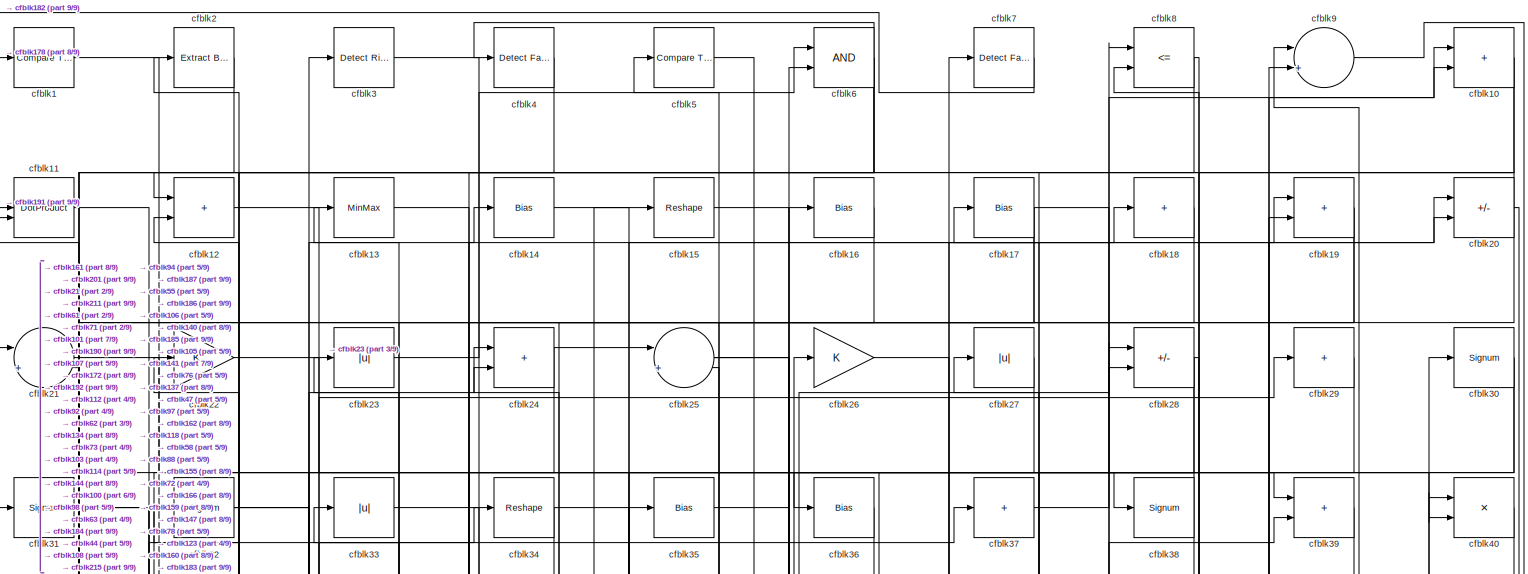
[diagram: root canvas - part 1/9, full width, top band]
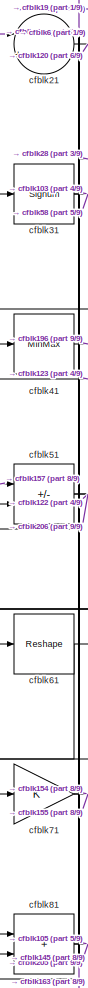
[diagram: root canvas - part 2/9, top left region]
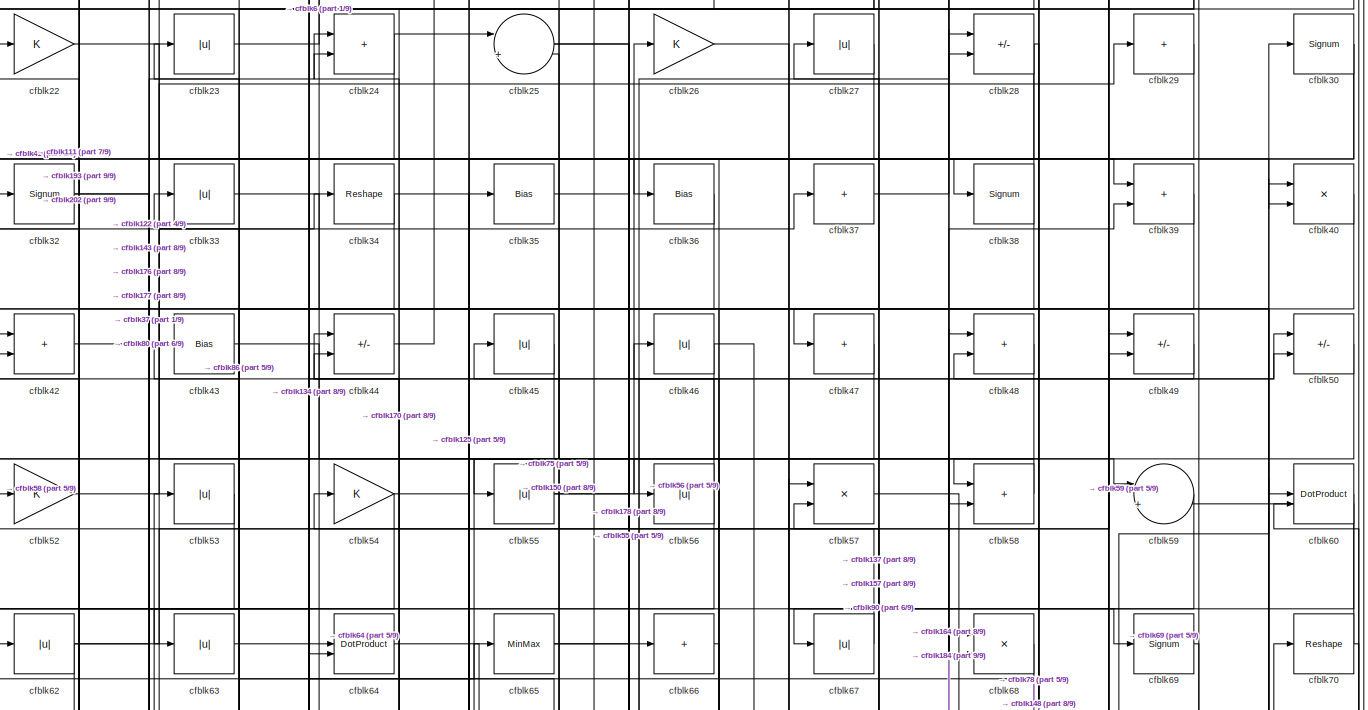
[diagram: root canvas - part 3/9, full width, top band]
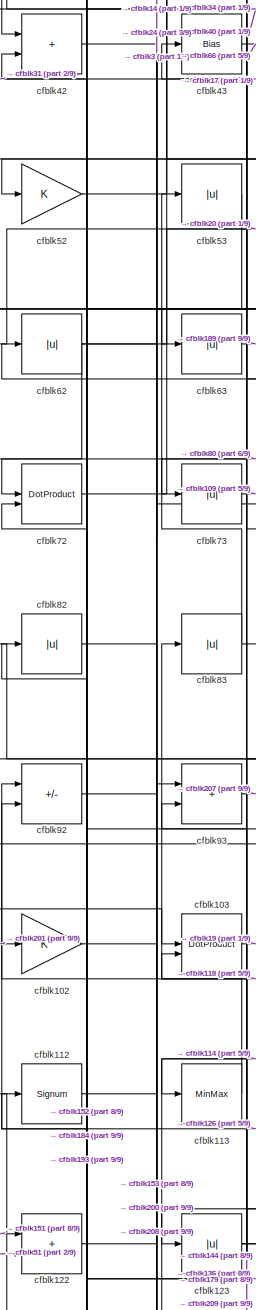
[diagram: root canvas - part 4/9, middle left region]
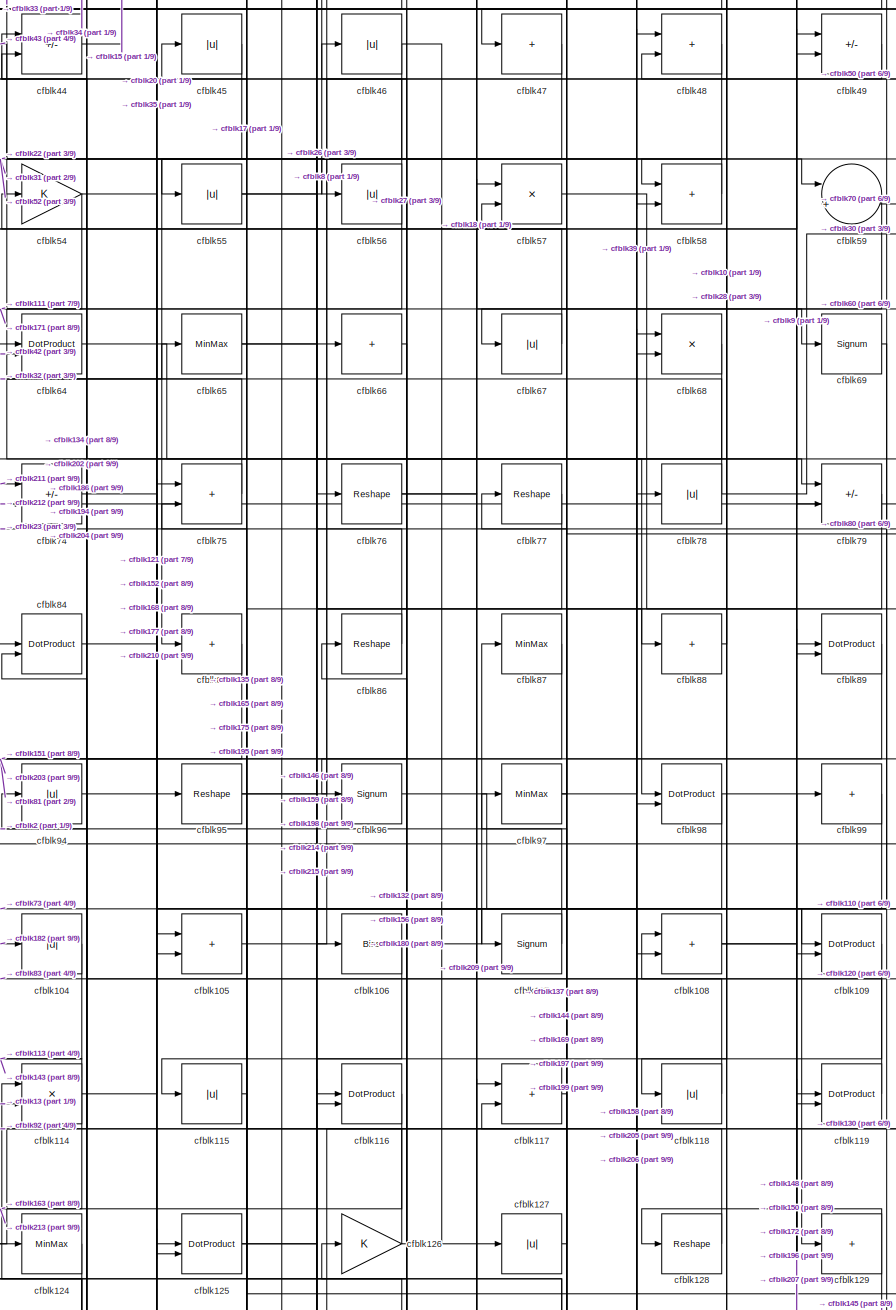
[diagram: root canvas - part 5/9, central region]
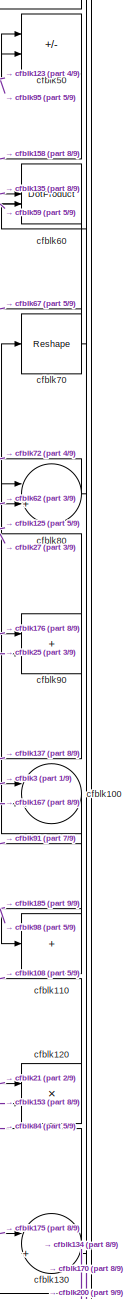
[diagram: root canvas - part 6/9, middle right region]
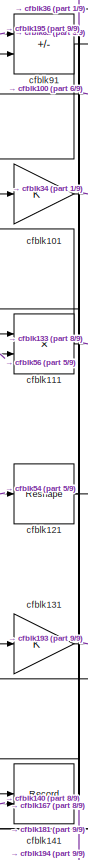
[diagram: root canvas - part 7/9, middle left region]
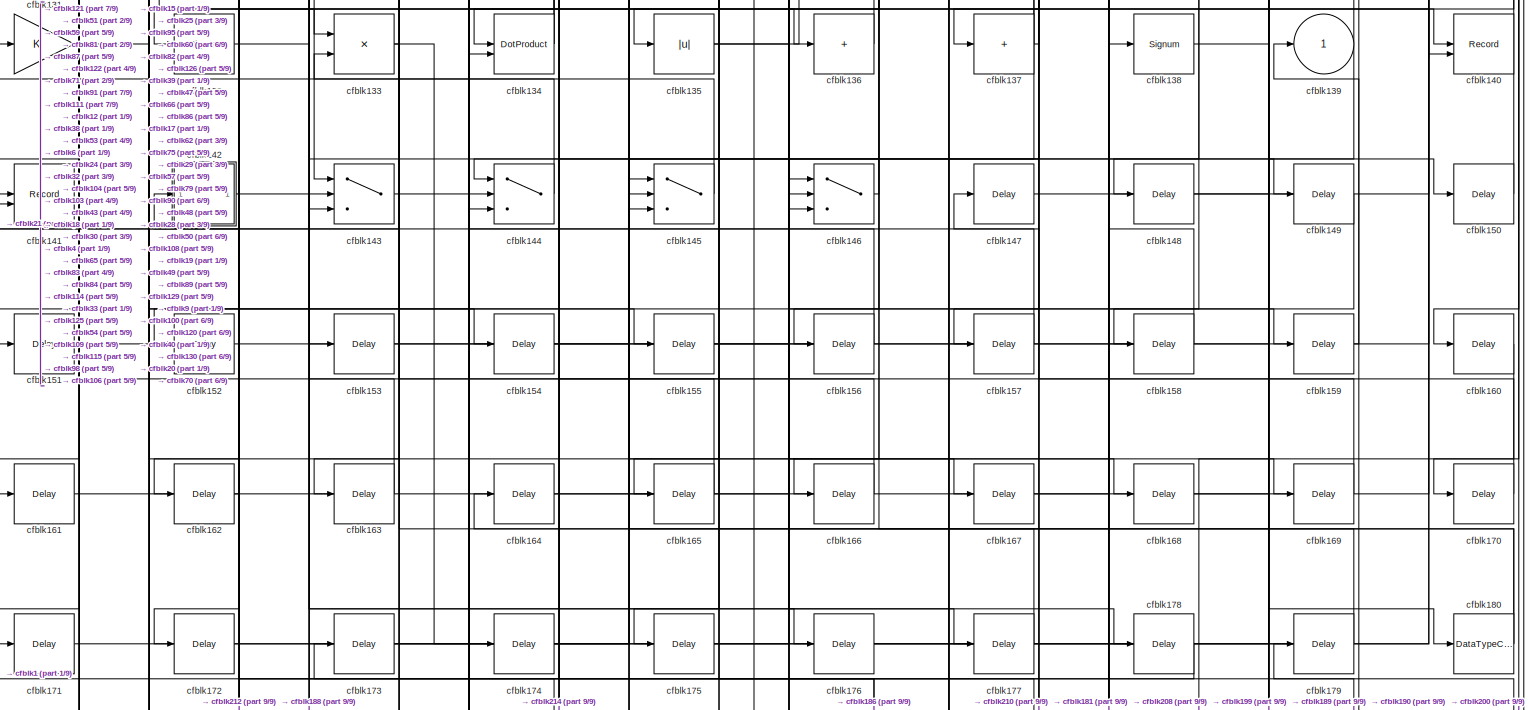
[diagram: root canvas - part 8/9, full width, bottom band]
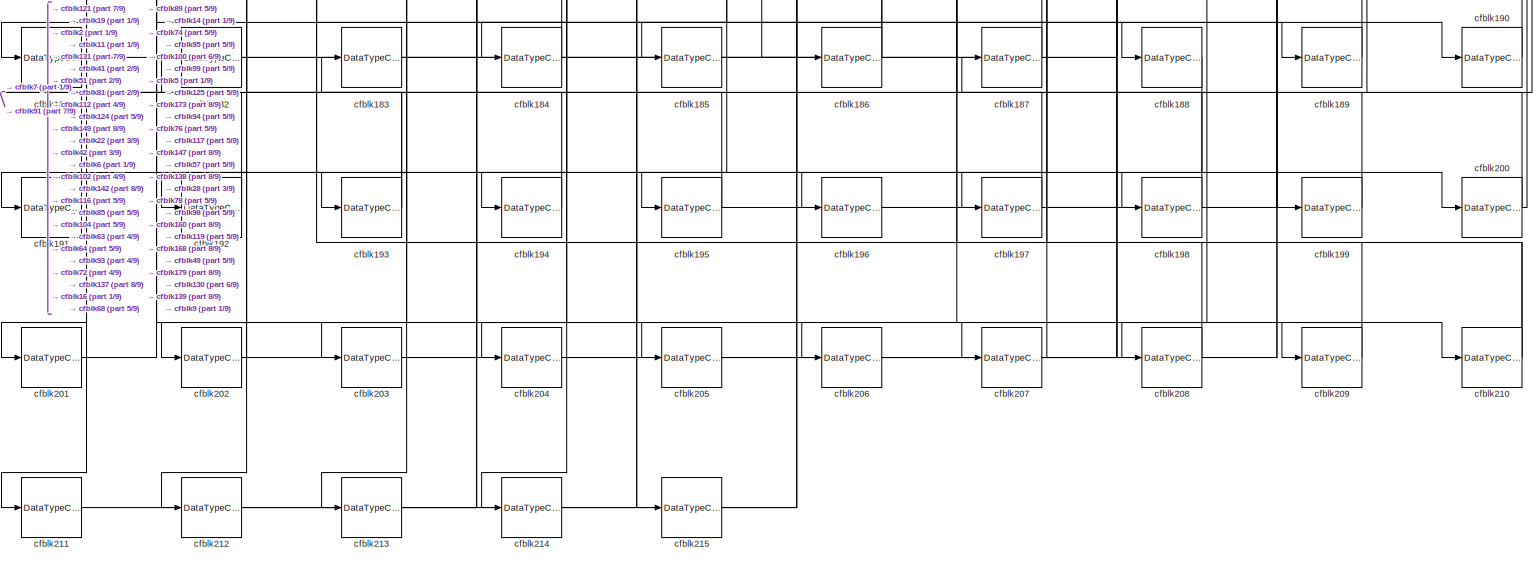
[diagram: root canvas - part 9/9, full width, bottom band]
MODEL slx_344e503462cb
KIND model
CONFIG AbsTol = auto
CONFIG EnableMultiTasking = off
CONFIG FixedStep = auto
CONFIG MaxStep = auto
CONFIG MinStep = auto
CONFIG RelTol = 1e-3
CONFIG SampleTimeConstraint = Unconstrained
CONFIG SolverName = VariableStepAuto
CONFIG StartTime = 0.0
CONFIG StopTime = 10.0
BLOCK [Reference] cfblk1  REF=hdlsllib/Logic and Bit
Operations/Compare
To Zero
  SourceBlock = hdlsllib/Logic and Bit\nOperations/Compare\nTo Zero
  SourceType = Compare To Zero
BLOCK [Sum] cfblk10
  IconShape = rectangular
BLOCK [Sum] cfblk100
  Inputs = |++
BLOCK [Gain] cfblk101
BLOCK [Gain] cfblk102
BLOCK [DotProduct] cfblk103
  OutDataTypeStr = Inherit: Inherit via internal rule
BLOCK [Abs] cfblk104
  SaturateOnIntegerOverflow = off
BLOCK [Sum] cfblk105
  IconShape = rectangular
BLOCK [Bias] cfblk106
  Bias = 0.0
  SaturateOnIntegerOverflow = off
BLOCK [Signum] cfblk107
BLOCK [Sum] cfblk108
  IconShape = rectangular
BLOCK [DotProduct] cfblk109
  OutDataTypeStr = Inherit: Inherit via internal rule
BLOCK [DotProduct] cfblk11
  OutDataTypeStr = Inherit: Inherit via internal rule
BLOCK [Sum] cfblk110
  IconShape = rectangular
  Inputs = +
BLOCK [Product] cfblk111
  Inputs = */
  RndMeth = Zero
  SaturateOnIntegerOverflow = on
BLOCK [Signum] cfblk112
BLOCK [MinMax] cfblk113
BLOCK [Product] cfblk114
  Inputs = */
  RndMeth = Zero
  SaturateOnIntegerOverflow = on
BLOCK [Abs] cfblk115
  SaturateOnIntegerOverflow = off
BLOCK [DotProduct] cfblk116
  OutDataTypeStr = Inherit: Inherit via internal rule
BLOCK [Sum] cfblk117
  IconShape = rectangular
BLOCK [Abs] cfblk118
  SaturateOnIntegerOverflow = off
BLOCK [DotProduct] cfblk119
  OutDataTypeStr = Inherit: Inherit via internal rule
BLOCK [Sum] cfblk12
  IconShape = rectangular
BLOCK [Product] cfblk120
  Inputs = */
  RndMeth = Zero
  SaturateOnIntegerOverflow = on
BLOCK [Reshape] cfblk121
BLOCK [Sum] cfblk122
  IconShape = rectangular
BLOCK [Abs] cfblk123
  SaturateOnIntegerOverflow = off
BLOCK [MinMax] cfblk124
BLOCK [DotProduct] cfblk125
  OutDataTypeStr = Inherit: Inherit via internal rule
BLOCK [Gain] cfblk126
BLOCK [Abs] cfblk127
  SaturateOnIntegerOverflow = off
BLOCK [Reshape] cfblk128
BLOCK [Sum] cfblk129
  IconShape = rectangular
  Inputs = +
BLOCK [MinMax] cfblk13
BLOCK [Sum] cfblk130
  Inputs = |++
BLOCK [Gain] cfblk131
BLOCK [Signum] cfblk132
BLOCK [Product] cfblk133
  Inputs = */
  RndMeth = Zero
  SaturateOnIntegerOverflow = on
BLOCK [DotProduct] cfblk134
  OutDataTypeStr = Inherit: Inherit via internal rule
BLOCK [Abs] cfblk135
  SaturateOnIntegerOverflow = off
BLOCK [Sum] cfblk136
  IconShape = rectangular
  Inputs = +
BLOCK [Sum] cfblk137
  IconShape = rectangular
  Inputs = +
BLOCK [Signum] cfblk138
BLOCK [Outport] cfblk139
  VectorParamsAs1DForOutWhenUnconnected = off
BLOCK [Bias] cfblk14
  Bias = 0.0
  SaturateOnIntegerOverflow = off
BLOCK [Record] cfblk140
  CompatibilityTag = XY
  FileSettingsInternal = {"entries":[{"content":{"excelSettings":{"content":{},"type":"Streamout.ExcelSettings"}},"type":"Streamout.FileSettingStorage","uuid":""}],"packageUris":["http:\/\/schema.mathworks.com\/mf0\/streamout_blocks\/R2020a"],"version":"1.0"}
  Layout = [1 1]
  SignalsInternal = {"entries":[{"content":{"signals":[{"content":{"blockPath":[],"dimensions":[1],"domain":"","lineColor":"#a2142f","plots":[1],"port":1,"signalID":1298,"signalName":"XY Graph:1"},"type":"RecordBlkView.Signal","uuid":""},{"content":{"blockPath":[],"dimensions":[1],"domain":"","lineColor":"#139fff","plots":[1],"port":2,"signalID":1301,"signalName":"XY Graph:2"},"type":"RecordBlkView.Signal","uuid":""}...<+146ch>
  VisualizationBindings = {"xyplotplugin":{"info":[{"series":[{"bindingParametersList":[{"parameter":"X-Axis","signalID":1298,"signalName":"XY Graph:1"},{"parameter":"Y-Axis","signalID":1301,"signalName":"XY Graph:2"}],"seriesID":63275}],"subplotID":1}]}}
  st = -1
BLOCK [Record] cfblk141
  CompatibilityTag = XY
  FileSettingsInternal = {"entries":[{"content":{"excelSettings":{"content":{},"type":"Streamout.ExcelSettings"}},"type":"Streamout.FileSettingStorage","uuid":""}],"packageUris":["http:\/\/schema.mathworks.com\/mf0\/streamout_blocks\/R2020a"],"version":"1.0"}
  Layout = [1 1]
  SignalsInternal = {"entries":[{"content":{"signals":[{"content":{"blockPath":[],"dimensions":[1],"domain":"","lineColor":"#a2142f","plots":[1],"port":1,"signalID":1306,"signalName":"XY Graph:1"},"type":"RecordBlkView.Signal","uuid":""},{"content":{"blockPath":[],"dimensions":[1],"domain":"","lineColor":"#139fff","plots":[1],"port":2,"signalID":1309,"signalName":"XY Graph:2"},"type":"RecordBlkView.Signal","uuid":""}...<+146ch>
  VisualizationBindings = {"xyplotplugin":{"info":[{"series":[{"bindingParametersList":[{"parameter":"X-Axis","signalID":1306,"signalName":"XY Graph:1"},{"parameter":"Y-Axis","signalID":1309,"signalName":"XY Graph:2"}],"seriesID":32852}],"subplotID":1}]}}
  st = -1
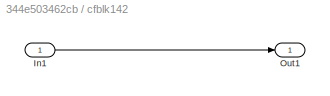
BLOCK [SubSystem] cfblk142
  LibrarySourceBlock = hdlsllib/Ports &\nSubsystems/Subsystem
BLOCK [Inport] cfblk142/In1
BLOCK [Outport] cfblk142/Out1
BLOCK [Switch] cfblk143
  InputSameDT = off
  SaturateOnIntegerOverflow = off
BLOCK [Switch] cfblk144
  InputSameDT = off
  SaturateOnIntegerOverflow = off
BLOCK [Switch] cfblk145
  InputSameDT = off
  SaturateOnIntegerOverflow = off
BLOCK [Switch] cfblk146
  InputSameDT = off
  SaturateOnIntegerOverflow = off
BLOCK [Delay] cfblk147
  InputPortMap = u0
  SampleTime = 1
BLOCK [Delay] cfblk148
  InputPortMap = u0
  SampleTime = 1
BLOCK [Delay] cfblk149
  InputPortMap = u0
  SampleTime = 1
BLOCK [Reshape] cfblk15
BLOCK [Delay] cfblk150
  InputPortMap = u0
  SampleTime = 1
BLOCK [Delay] cfblk151
  InputPortMap = u0
  SampleTime = 1
BLOCK [Delay] cfblk152
  InputPortMap = u0
  SampleTime = 1
BLOCK [Delay] cfblk153
  InputPortMap = u0
  SampleTime = 1
BLOCK [Delay] cfblk154
  InputPortMap = u0
  SampleTime = 1
BLOCK [Delay] cfblk155
  InputPortMap = u0
  SampleTime = 1
BLOCK [Delay] cfblk156
  InputPortMap = u0
  SampleTime = 1
BLOCK [Delay] cfblk157
  InputPortMap = u0
  SampleTime = 1
BLOCK [Delay] cfblk158
  InputPortMap = u0
  SampleTime = 1
BLOCK [Delay] cfblk159
  InputPortMap = u0
  SampleTime = 1
BLOCK [Bias] cfblk16
  Bias = 0.0
  SaturateOnIntegerOverflow = off
BLOCK [Delay] cfblk160
  InputPortMap = u0
  SampleTime = 1
BLOCK [Delay] cfblk161
  InputPortMap = u0
  SampleTime = 1
BLOCK [Delay] cfblk162
  InputPortMap = u0
  SampleTime = 1
BLOCK [Delay] cfblk163
  InputPortMap = u0
  SampleTime = 1
BLOCK [Delay] cfblk164
  InputPortMap = u0
  SampleTime = 1
BLOCK [Delay] cfblk165
  InputPortMap = u0
  SampleTime = 1
BLOCK [Delay] cfblk166
  InputPortMap = u0
  SampleTime = 1
BLOCK [Delay] cfblk167
  InputPortMap = u0
  SampleTime = 1
BLOCK [Delay] cfblk168
  InputPortMap = u0
  SampleTime = 1
BLOCK [Delay] cfblk169
  InputPortMap = u0
  SampleTime = 1
BLOCK [Bias] cfblk17
  Bias = 0.0
  SaturateOnIntegerOverflow = off
BLOCK [Delay] cfblk170
  InputPortMap = u0
  SampleTime = 1
BLOCK [Delay] cfblk171
  InputPortMap = u0
  SampleTime = 1
BLOCK [Delay] cfblk172
  InputPortMap = u0
  SampleTime = 1
BLOCK [Delay] cfblk173
  InputPortMap = u0
  SampleTime = 1
BLOCK [Delay] cfblk174
  InputPortMap = u0
  SampleTime = 1
BLOCK [Delay] cfblk175
  InputPortMap = u0
  SampleTime = 1
BLOCK [Delay] cfblk176
  InputPortMap = u0
  SampleTime = 1
BLOCK [Delay] cfblk177
  InputPortMap = u0
  SampleTime = 1
BLOCK [Delay] cfblk178
  InputPortMap = u0
  SampleTime = 1
BLOCK [Delay] cfblk179
  InputPortMap = u0
  SampleTime = 1
BLOCK [Sum] cfblk18
  IconShape = rectangular
  Inputs = +
BLOCK [DataTypeConversion] cfblk180
  RndMeth = Floor
  SaturateOnIntegerOverflow = off
BLOCK [DataTypeConversion] cfblk181
  OutDataTypeStr = uint8
  RndMeth = Floor
  SaturateOnIntegerOverflow = off
BLOCK [DataTypeConversion] cfblk182
  OutDataTypeStr = uint8
  RndMeth = Floor
  SaturateOnIntegerOverflow = off
BLOCK [DataTypeConversion] cfblk183
  OutDataTypeStr = uint8
  RndMeth = Floor
  SaturateOnIntegerOverflow = off
BLOCK [DataTypeConversion] cfblk184
  RndMeth = Floor
  SaturateOnIntegerOverflow = off
BLOCK [DataTypeConversion] cfblk185
  OutDataTypeStr = uint8
  RndMeth = Floor
  SaturateOnIntegerOverflow = off
BLOCK [DataTypeConversion] cfblk186
  RndMeth = Floor
  SaturateOnIntegerOverflow = off
BLOCK [DataTypeConversion] cfblk187
  OutDataTypeStr = uint8
  RndMeth = Floor
  SaturateOnIntegerOverflow = off
BLOCK [DataTypeConversion] cfblk188
  OutDataTypeStr = uint8
  RndMeth = Floor
  SaturateOnIntegerOverflow = off
BLOCK [DataTypeConversion] cfblk189
  OutDataTypeStr = uint8
  RndMeth = Floor
  SaturateOnIntegerOverflow = off
BLOCK [Sum] cfblk19
  IconShape = rectangular
BLOCK [DataTypeConversion] cfblk190
  OutDataTypeStr = uint8
  RndMeth = Floor
  SaturateOnIntegerOverflow = off
BLOCK [DataTypeConversion] cfblk191
  OutDataTypeStr = uint8
  RndMeth = Floor
  SaturateOnIntegerOverflow = off
BLOCK [DataTypeConversion] cfblk192
  OutDataTypeStr = uint8
  RndMeth = Floor
  SaturateOnIntegerOverflow = off
BLOCK [DataTypeConversion] cfblk193
  RndMeth = Floor
  SaturateOnIntegerOverflow = off
BLOCK [DataTypeConversion] cfblk194
  OutDataTypeStr = uint8
  RndMeth = Floor
  SaturateOnIntegerOverflow = off
BLOCK [DataTypeConversion] cfblk195
  RndMeth = Floor
  SaturateOnIntegerOverflow = off
BLOCK [DataTypeConversion] cfblk196
  OutDataTypeStr = uint8
  RndMeth = Floor
  SaturateOnIntegerOverflow = off
BLOCK [DataTypeConversion] cfblk197
  RndMeth = Floor
  SaturateOnIntegerOverflow = off
BLOCK [DataTypeConversion] cfblk198
  OutDataTypeStr = uint8
  RndMeth = Floor
  SaturateOnIntegerOverflow = off
BLOCK [DataTypeConversion] cfblk199
  OutDataTypeStr = uint8
  RndMeth = Floor
  SaturateOnIntegerOverflow = off
BLOCK [Reference] cfblk2  REF=simulink/Logic and Bit
Operations/Extract Bits
  LibrarySourceBlock = hdlsllib/Logic and Bit\nOperations/Extract Bits
  SourceBlock = simulink/Logic and Bit\nOperations/Extract Bits
  SourceType = Extract Bits
BLOCK [Sum] cfblk20
  IconShape = rectangular
  Inputs = +-
BLOCK [DataTypeConversion] cfblk200
  RndMeth = Floor
  SaturateOnIntegerOverflow = off
BLOCK [DataTypeConversion] cfblk201
  OutDataTypeStr = uint8
  RndMeth = Floor
  SaturateOnIntegerOverflow = off
BLOCK [DataTypeConversion] cfblk202
  RndMeth = Floor
  SaturateOnIntegerOverflow = off
BLOCK [DataTypeConversion] cfblk203
  OutDataTypeStr = uint8
  RndMeth = Floor
  SaturateOnIntegerOverflow = off
BLOCK [DataTypeConversion] cfblk204
  OutDataTypeStr = uint8
  RndMeth = Floor
  SaturateOnIntegerOverflow = off
BLOCK [DataTypeConversion] cfblk205
  OutDataTypeStr = uint8
  RndMeth = Floor
  SaturateOnIntegerOverflow = off
BLOCK [DataTypeConversion] cfblk206
  OutDataTypeStr = uint8
  RndMeth = Floor
  SaturateOnIntegerOverflow = off
BLOCK [DataTypeConversion] cfblk207
  RndMeth = Floor
  SaturateOnIntegerOverflow = off
BLOCK [DataTypeConversion] cfblk208
  OutDataTypeStr = uint8
  RndMeth = Floor
  SaturateOnIntegerOverflow = off
BLOCK [DataTypeConversion] cfblk209
  OutDataTypeStr = uint8
  RndMeth = Floor
  SaturateOnIntegerOverflow = off
BLOCK [Sum] cfblk21
  Inputs = |++
BLOCK [DataTypeConversion] cfblk210
  RndMeth = Floor
  SaturateOnIntegerOverflow = off
BLOCK [DataTypeConversion] cfblk211
  OutDataTypeStr = uint8
  RndMeth = Floor
  SaturateOnIntegerOverflow = off
BLOCK [DataTypeConversion] cfblk212
  OutDataTypeStr = uint8
  RndMeth = Floor
  SaturateOnIntegerOverflow = off
BLOCK [DataTypeConversion] cfblk213
  OutDataTypeStr = uint8
  RndMeth = Floor
  SaturateOnIntegerOverflow = off
BLOCK [DataTypeConversion] cfblk214
  OutDataTypeStr = uint8
  RndMeth = Floor
  SaturateOnIntegerOverflow = off
BLOCK [DataTypeConversion] cfblk215
  OutDataTypeStr = uint8
  RndMeth = Floor
  SaturateOnIntegerOverflow = off
BLOCK [Gain] cfblk22
BLOCK [Abs] cfblk23
  SaturateOnIntegerOverflow = off
BLOCK [Sum] cfblk24
  IconShape = rectangular
BLOCK [Sum] cfblk25
  Inputs = |++
BLOCK [Gain] cfblk26
BLOCK [Abs] cfblk27
  SaturateOnIntegerOverflow = off
BLOCK [Sum] cfblk28
  IconShape = rectangular
  Inputs = +-
BLOCK [Sum] cfblk29
  IconShape = rectangular
  Inputs = +
BLOCK [Reference] cfblk3  REF=hdlsllib/Logic and Bit
Operations/Detect Rise
Positive
  SourceBlock = hdlsllib/Logic and Bit\nOperations/Detect Rise\nPositive
  SourceType = Detect Rise Positive
BLOCK [Signum] cfblk30
BLOCK [Signum] cfblk31
BLOCK [Signum] cfblk32
BLOCK [Abs] cfblk33
  SaturateOnIntegerOverflow = off
BLOCK [Reshape] cfblk34
BLOCK [Bias] cfblk35
  Bias = 0.0
  SaturateOnIntegerOverflow = off
BLOCK [Bias] cfblk36
  Bias = 0.0
  SaturateOnIntegerOverflow = off
BLOCK [Sum] cfblk37
  IconShape = rectangular
  Inputs = +
BLOCK [Signum] cfblk38
BLOCK [Sum] cfblk39
  IconShape = rectangular
BLOCK [Reference] cfblk4  REF=hdlsllib/Logic and Bit
Operations/Detect Fall
Negative
  SourceBlock = hdlsllib/Logic and Bit\nOperations/Detect Fall\nNegative
  SourceType = Detect Fall Negative
BLOCK [Product] cfblk40
  Inputs = */
  RndMeth = Zero
  SaturateOnIntegerOverflow = on
BLOCK [MinMax] cfblk41
BLOCK [Sum] cfblk42
  IconShape = rectangular
BLOCK [Bias] cfblk43
  Bias = 0.0
  SaturateOnIntegerOverflow = off
BLOCK [Sum] cfblk44
  IconShape = rectangular
  Inputs = +-
BLOCK [Abs] cfblk45
  SaturateOnIntegerOverflow = off
BLOCK [Abs] cfblk46
  SaturateOnIntegerOverflow = off
BLOCK [Sum] cfblk47
  IconShape = rectangular
  Inputs = +
BLOCK [Sum] cfblk48
  IconShape = rectangular
BLOCK [Sum] cfblk49
  IconShape = rectangular
  Inputs = +-
BLOCK [Reference] cfblk5  REF=hdlsllib/Logic and Bit
Operations/Compare
To Zero
  SourceBlock = hdlsllib/Logic and Bit\nOperations/Compare\nTo Zero
  SourceType = Compare To Zero
BLOCK [Sum] cfblk50
  IconShape = rectangular
  Inputs = +-
BLOCK [Sum] cfblk51
  IconShape = rectangular
  Inputs = +-
BLOCK [Gain] cfblk52
BLOCK [Abs] cfblk53
  SaturateOnIntegerOverflow = off
BLOCK [Gain] cfblk54
BLOCK [Abs] cfblk55
  SaturateOnIntegerOverflow = off
BLOCK [Abs] cfblk56
  SaturateOnIntegerOverflow = off
BLOCK [Product] cfblk57
  Inputs = */
  RndMeth = Zero
  SaturateOnIntegerOverflow = on
BLOCK [Sum] cfblk58
  IconShape = rectangular
BLOCK [Sum] cfblk59
  Inputs = |++
BLOCK [Logic] cfblk6
  AllPortsSameDT = off
  OutDataTypeStr = boolean
BLOCK [DotProduct] cfblk60
  OutDataTypeStr = Inherit: Inherit via internal rule
BLOCK [Reshape] cfblk61
BLOCK [Abs] cfblk62
  SaturateOnIntegerOverflow = off
BLOCK [Abs] cfblk63
  SaturateOnIntegerOverflow = off
BLOCK [DotProduct] cfblk64
  OutDataTypeStr = Inherit: Inherit via internal rule
BLOCK [MinMax] cfblk65
BLOCK [Sum] cfblk66
  IconShape = rectangular
  Inputs = +
BLOCK [Abs] cfblk67
  SaturateOnIntegerOverflow = off
BLOCK [Product] cfblk68
  Inputs = */
  RndMeth = Zero
  SaturateOnIntegerOverflow = on
BLOCK [Signum] cfblk69
BLOCK [Reference] cfblk7  REF=hdlsllib/Logic and Bit
Operations/Detect Fall
Nonpositive
  SourceBlock = hdlsllib/Logic and Bit\nOperations/Detect Fall\nNonpositive
  SourceType = Detect Fall Nonpositive
BLOCK [Reshape] cfblk70
BLOCK [Gain] cfblk71
BLOCK [DotProduct] cfblk72
  OutDataTypeStr = Inherit: Inherit via internal rule
BLOCK [Abs] cfblk73
  SaturateOnIntegerOverflow = off
BLOCK [Sum] cfblk74
  IconShape = rectangular
  Inputs = +-
BLOCK [Sum] cfblk75
  IconShape = rectangular
BLOCK [Reshape] cfblk76
BLOCK [Reshape] cfblk77
BLOCK [Abs] cfblk78
  SaturateOnIntegerOverflow = off
BLOCK [Sum] cfblk79
  IconShape = rectangular
  Inputs = +-
BLOCK [RelationalOperator] cfblk8
  InputSameDT = off
  Operator = <=
  OutDataTypeStr = boolean
BLOCK [Sum] cfblk80
  Inputs = |++
BLOCK [Sum] cfblk81
  IconShape = rectangular
BLOCK [Abs] cfblk82
  SaturateOnIntegerOverflow = off
BLOCK [Abs] cfblk83
  SaturateOnIntegerOverflow = off
BLOCK [DotProduct] cfblk84
  OutDataTypeStr = Inherit: Inherit via internal rule
BLOCK [Sum] cfblk85
  IconShape = rectangular
  Inputs = +
BLOCK [Reshape] cfblk86
BLOCK [MinMax] cfblk87
BLOCK [Sum] cfblk88
  IconShape = rectangular
  Inputs = +
BLOCK [DotProduct] cfblk89
  OutDataTypeStr = Inherit: Inherit via internal rule
BLOCK [Sum] cfblk9
  Inputs = |++
BLOCK [Sum] cfblk90
  IconShape = rectangular
BLOCK [Sum] cfblk91
  IconShape = rectangular
  Inputs = +-
BLOCK [Sum] cfblk92
  IconShape = rectangular
  Inputs = +-
BLOCK [Sum] cfblk93
  IconShape = rectangular
BLOCK [Abs] cfblk94
  SaturateOnIntegerOverflow = off
BLOCK [Reshape] cfblk95
BLOCK [Signum] cfblk96
BLOCK [MinMax] cfblk97
BLOCK [DotProduct] cfblk98
  OutDataTypeStr = Inherit: Inherit via internal rule
BLOCK [Sum] cfblk99
  IconShape = rectangular
  Inputs = +
NET cfblk100:1 -> cfblk185:1, cfblk91:2
LINE cfblk101:1 -> cfblk34:1
LINE cfblk102:1 -> cfblk200:1
LINE cfblk103:1 -> cfblk19:1
LINE cfblk104:1 -> cfblk143:1
LINE cfblk105:1 -> cfblk8:1
NET cfblk106:1 -> cfblk146:3, cfblk87:1
LINE cfblk107:1 -> cfblk2:1
NET cfblk108:1 -> cfblk150:1, cfblk9:2
LINE cfblk109:1 -> cfblk175:1
NET cfblk10:1 -> cfblk118:1, cfblk71:1
LINE cfblk110:1 -> cfblk70:1
NET cfblk111:1 -> cfblk101:1, cfblk133:1
LINE cfblk112:1 -> cfblk3:1
LINE cfblk113:1 -> cfblk92:2
NET cfblk114:1 -> cfblk113:1, cfblk163:1, cfblk20:2
LINE cfblk115:1 -> cfblk165:1
LINE cfblk116:1 -> cfblk213:1
LINE cfblk117:1 -> cfblk197:1
LINE cfblk118:1 -> cfblk83:1
LINE cfblk119:1 -> cfblk44:2
LINE cfblk11:1 -> cfblk190:1
LINE cfblk120:1 -> cfblk108:1
NET cfblk121:1 -> cfblk167:1, cfblk181:1
LINE cfblk122:1 -> cfblk24:1
NET cfblk123:1 -> cfblk31:1, cfblk50:2
LINE cfblk124:1 -> cfblk202:1
NET cfblk125:1 -> cfblk198:1, cfblk80:1
NET cfblk126:1 -> cfblk46:1, cfblk92:1
LINE cfblk127:1 -> cfblk97:1
LINE cfblk128:1 -> cfblk45:1
NET cfblk129:1 -> cfblk128:1, cfblk145:2
LINE cfblk12:1 -> cfblk38:1
NET cfblk130:1 -> cfblk134:1, cfblk84:2
LINE cfblk131:1 -> cfblk193:1
LINE cfblk132:1 -> cfblk149:1
NET cfblk133:1 -> cfblk174:1, cfblk21:1
NET cfblk134:1 -> cfblk114:1, cfblk33:1
NET cfblk135:1 -> cfblk169:1, cfblk60:1
LINE cfblk136:1 -> cfblk82:1
NET cfblk137:1 -> cfblk17:1, cfblk214:1, cfblk62:1, cfblk75:2
LINE cfblk138:1 -> cfblk180:1
LINE cfblk13:1 -> cfblk114:2
LINE cfblk142/In1:1 -> cfblk142/Out1:1
LINE cfblk142:1 -> cfblk188:1
LINE cfblk143:1 -> cfblk65:1
LINE cfblk144:1 -> cfblk43:1
LINE cfblk145:1 -> cfblk51:2
LINE cfblk146:1 -> cfblk86:1
LINE cfblk147:1 -> cfblk40:1
LINE cfblk148:1 -> cfblk89:1
LINE cfblk149:1 -> cfblk212:1
LINE cfblk14:1 -> cfblk215:1
LINE cfblk150:1 -> cfblk25:2
LINE cfblk151:1 -> cfblk122:1
LINE cfblk152:1 -> cfblk125:1
LINE cfblk153:1 -> cfblk120:2
LINE cfblk154:1 -> cfblk146:1
LINE cfblk155:1 -> cfblk19:2
LINE cfblk156:1 -> cfblk84:1
LINE cfblk157:1 -> cfblk51:1
LINE cfblk158:1 -> cfblk48:1
LINE cfblk159:1 -> cfblk9:1
LINE cfblk15:1 -> cfblk140:2
LINE cfblk160:1 -> cfblk208:1
LINE cfblk161:1 -> cfblk6:2
LINE cfblk162:1 -> cfblk12:2
LINE cfblk163:1 -> cfblk81:2
LINE cfblk164:1 -> cfblk28:1
LINE cfblk165:1 -> cfblk133:2
LINE cfblk166:1 -> cfblk143:2
LINE cfblk167:1 -> cfblk100:2
LINE cfblk168:1 -> cfblk199:1
LINE cfblk169:1 -> cfblk57:2
LINE cfblk16:1 -> cfblk184:1
LINE cfblk170:1 -> cfblk24:2
LINE cfblk171:1 -> cfblk146:2
LINE cfblk172:1 -> cfblk49:2
LINE cfblk173:1 -> cfblk145:3
LINE cfblk174:1 -> cfblk145:1
LINE cfblk175:1 -> cfblk130:1
LINE cfblk176:1 -> cfblk90:1
LINE cfblk177:1 -> cfblk75:1
LINE cfblk178:1 -> cfblk1:1
LINE cfblk179:1 -> cfblk103:2
NET cfblk17:1 -> cfblk39:1, cfblk55:1, cfblk73:1
NET cfblk180:1 -> cfblk126:1, cfblk164:1
LINE cfblk181:1 -> cfblk138:1
LINE cfblk182:1 -> cfblk104:1
LINE cfblk183:1 -> cfblk7:1
NET cfblk184:1 -> cfblk28:2, cfblk72:2
LINE cfblk185:1 -> cfblk16:1
NET cfblk186:1 -> cfblk173:1, cfblk94:1
LINE cfblk187:1 -> cfblk5:1
LINE cfblk188:1 -> cfblk191:1
LINE cfblk189:1 -> cfblk142:1
LINE cfblk18:1 -> cfblk144:2
LINE cfblk190:1 -> cfblk139:1
LINE cfblk191:1 -> cfblk11:1
LINE cfblk192:1 -> cfblk11:2
NET cfblk193:1 -> cfblk112:1, cfblk22:1
LINE cfblk194:1 -> cfblk131:1
NET cfblk195:1 -> cfblk91:1, cfblk98:2
LINE cfblk196:1 -> cfblk99:1
NET cfblk197:1 -> cfblk49:1, cfblk64:1
LINE cfblk198:1 -> cfblk117:1
LINE cfblk199:1 -> cfblk117:2
NET cfblk19:1 -> cfblk201:1, cfblk21:2
LINE cfblk1:1 -> cfblk40:2
NET cfblk200:1 -> cfblk130:2, cfblk179:1
LINE cfblk201:1 -> cfblk102:1
NET cfblk202:1 -> cfblk119:2, cfblk42:2
LINE cfblk203:1 -> cfblk124:1
LINE cfblk204:1 -> cfblk78:1
LINE cfblk205:1 -> cfblk68:1
LINE cfblk206:1 -> cfblk68:2
NET cfblk207:1 -> cfblk119:1, cfblk187:1
LINE cfblk208:1 -> cfblk93:1
LINE cfblk209:1 -> cfblk93:2
NET cfblk20:1 -> cfblk12:1, cfblk160:1, cfblk161:1
NET cfblk210:1 -> cfblk147:1, cfblk57:1
LINE cfblk211:1 -> cfblk74:1
LINE cfblk212:1 -> cfblk74:2
LINE cfblk213:1 -> cfblk95:1
LINE cfblk214:1 -> cfblk116:1
LINE cfblk215:1 -> cfblk116:2
LINE cfblk21:1 -> cfblk120:1
LINE cfblk22:1 -> cfblk59:1
LINE cfblk23:1 -> cfblk6:1
NET cfblk24:1 -> cfblk143:3, cfblk25:1
NET cfblk25:1 -> cfblk178:1, cfblk90:2
LINE cfblk26:1 -> cfblk69:1
LINE cfblk27:1 -> cfblk56:1
NET cfblk28:1 -> cfblk125:2, cfblk148:1, cfblk41:1
LINE cfblk29:1 -> cfblk157:1
LINE cfblk2:1 -> cfblk211:1
NET cfblk30:1 -> cfblk134:2, cfblk42:1
NET cfblk31:1 -> cfblk103:1, cfblk58:2
NET cfblk32:1 -> cfblk176:1, cfblk177:1
LINE cfblk33:1 -> cfblk98:1
NET cfblk34:1 -> cfblk108:2, cfblk63:1
LINE cfblk35:1 -> cfblk106:1
LINE cfblk36:1 -> cfblk141:1
LINE cfblk37:1 -> cfblk10:1
NET cfblk38:1 -> cfblk162:1, cfblk36:1
LINE cfblk39:1 -> cfblk166:1
LINE cfblk3:1 -> cfblk100:1
LINE cfblk40:1 -> cfblk123:1
LINE cfblk41:1 -> cfblk196:1
LINE cfblk42:1 -> cfblk64:2
LINE cfblk43:1 -> cfblk66:1
LINE cfblk44:1 -> cfblk15:1
LINE cfblk45:1 -> cfblk85:1
NET cfblk46:1 -> cfblk105:2, cfblk127:1
LINE cfblk47:1 -> cfblk156:1
LINE cfblk48:1 -> cfblk96:1
LINE cfblk49:1 -> cfblk48:2
LINE cfblk4:1 -> cfblk144:3
LINE cfblk50:1 -> cfblk158:1
NET cfblk51:1 -> cfblk122:2, cfblk206:1
LINE cfblk52:1 -> cfblk29:1
LINE cfblk53:1 -> cfblk152:1
NET cfblk54:1 -> cfblk121:1, cfblk168:1
NET cfblk55:1 -> cfblk26:1, cfblk88:1
NET cfblk56:1 -> cfblk111:2, cfblk44:1
LINE cfblk57:1 -> cfblk89:2
LINE cfblk58:1 -> cfblk52:1
LINE cfblk59:1 -> cfblk171:1
LINE cfblk5:1 -> cfblk186:1
LINE cfblk60:1 -> cfblk67:1
NET cfblk61:1 -> cfblk10:2, cfblk81:1
NET cfblk62:1 -> cfblk111:1, cfblk37:1, cfblk80:2
LINE cfblk63:1 -> cfblk189:1
LINE cfblk64:1 -> cfblk79:1
NET cfblk65:1 -> cfblk76:1, cfblk79:2
LINE cfblk66:1 -> cfblk132:1
LINE cfblk67:1 -> cfblk54:1
LINE cfblk68:1 -> cfblk204:1
LINE cfblk69:1 -> cfblk109:1
NET cfblk6:1 -> cfblk172:1, cfblk192:1, cfblk4:1, cfblk61:1
NET cfblk70:1 -> cfblk170:1, cfblk59:2
NET cfblk71:1 -> cfblk154:1, cfblk155:1
LINE cfblk72:1 -> cfblk20:1
LINE cfblk73:1 -> cfblk109:2
LINE cfblk74:1 -> cfblk210:1
LINE cfblk75:1 -> cfblk32:1
NET cfblk76:1 -> cfblk18:1, cfblk209:1
LINE cfblk77:1 -> cfblk115:1
NET cfblk78:1 -> cfblk13:1, cfblk30:1
LINE cfblk79:1 -> cfblk144:1
LINE cfblk7:1 -> cfblk182:1
NET cfblk80:1 -> cfblk60:2, cfblk72:1
NET cfblk81:1 -> cfblk105:1, cfblk205:1
LINE cfblk82:1 -> cfblk153:1
NET cfblk83:1 -> cfblk136:1, cfblk53:1
LINE cfblk84:1 -> cfblk107:1
LINE cfblk85:1 -> cfblk203:1
LINE cfblk86:1 -> cfblk23:1
LINE cfblk87:1 -> cfblk151:1
LINE cfblk88:1 -> cfblk8:2
LINE cfblk89:1 -> cfblk194:1
NET cfblk8:1 -> cfblk47:1, cfblk58:1
NET cfblk90:1 -> cfblk137:1, cfblk27:1
NET cfblk91:1 -> cfblk140:1, cfblk141:2
LINE cfblk92:1 -> cfblk14:1
LINE cfblk93:1 -> cfblk207:1
LINE cfblk94:1 -> cfblk35:1
NET cfblk95:1 -> cfblk159:1, cfblk50:1
LINE cfblk96:1 -> cfblk129:1
NET cfblk97:1 -> cfblk39:2, cfblk77:1
NET cfblk98:1 -> cfblk110:1, cfblk135:1
LINE cfblk99:1 -> cfblk195:1
LINE cfblk9:1 -> cfblk183:1
note: NET lines group one-source signal fan-out (src -> all destinations, sorted); 1:1 wires keep LINE
